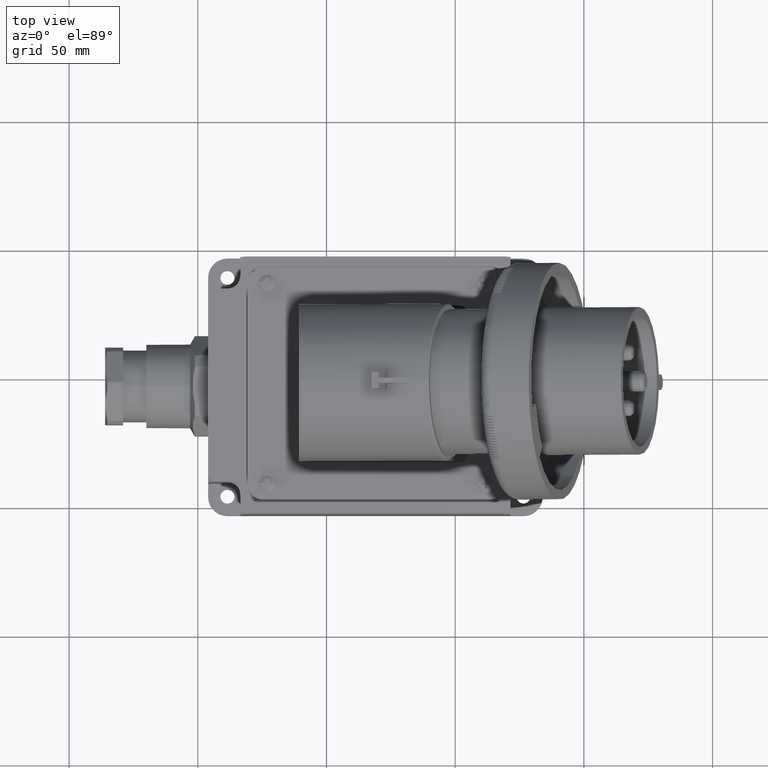
[diagram: clean part render]
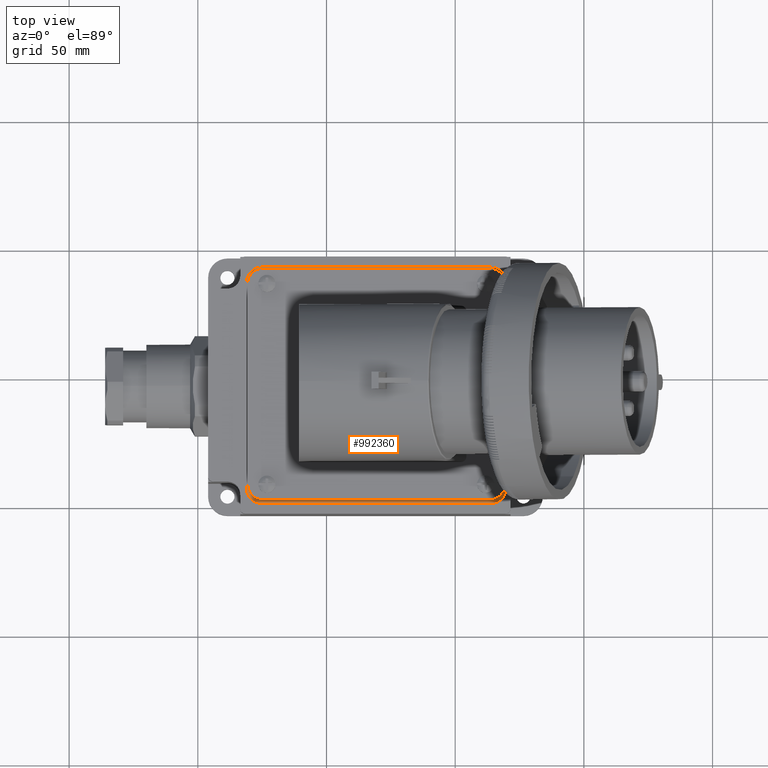
[diagram: same view with one face highlighted and labeled with its STEP entity id]
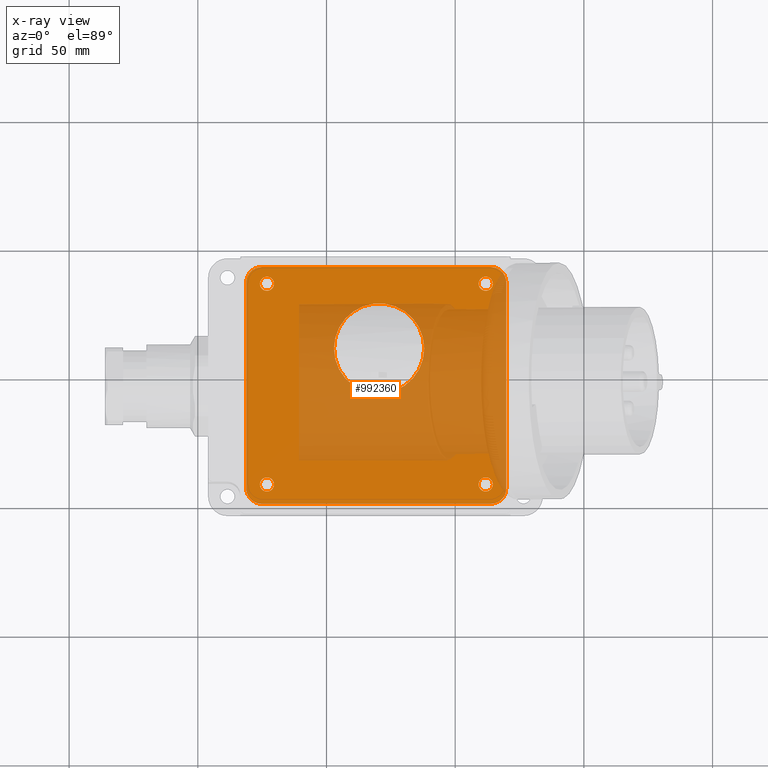
[diagram: x-ray of the same camera — body ghosted, the highlighted face saturated]
A machine part, top view. The second image highlights one B-rep face of the part: STEP entity #992360.
The next image is the same camera in x-ray: the body ghosted, the highlighted face saturated — about 49% of this face is hidden behind the body in this view.
In plain terms, the highlighted planar face has unit normal (0, 0, 1).
Its self-contained STEP definition (entity closure, byte-faithful):
#15560=CARTESIAN_POINT('',(24.1011064276177,86.5,45.3));
#15570=VERTEX_POINT('',#15560);
#15600=CARTESIAN_POINT('',(26.8511064276177,86.5,45.3));
#15610=DIRECTION('',(0.,0.,1.));
#15620=DIRECTION('',(-1.,-6.98784943854736E-17,0.));
#15630=AXIS2_PLACEMENT_3D('',#15600,#15610,#15620);
#15640=CIRCLE('',#15630,2.75);
#15650=CARTESIAN_POINT('',(29.6011064276177,86.5,45.3));
#15660=VERTEX_POINT('',#15650);
#15670=EDGE_CURVE('',#15660,#15570,#15640,.T.);
#15950=CARTESIAN_POINT('',(109.101106427618,86.5,45.3));
#15960=VERTEX_POINT('',#15950);
#15990=CARTESIAN_POINT('',(111.851106427618,86.5,45.3));
#16000=DIRECTION('',(0.,0.,1.));
#16010=DIRECTION('',(-1.,-6.98784943854736E-17,0.));
#16020=AXIS2_PLACEMENT_3D('',#15990,#16000,#16010);
#16030=CIRCLE('',#16020,2.75);
#16040=CARTESIAN_POINT('',(114.601106427618,86.5,45.3));
#16050=VERTEX_POINT('',#16040);
#16060=EDGE_CURVE('',#16050,#15960,#16030,.T.);
#16340=CARTESIAN_POINT('',(24.1011064276177,8.5,45.3));
#16350=VERTEX_POINT('',#16340);
#16380=CARTESIAN_POINT('',(26.8511064276177,8.5,45.3));
#16390=DIRECTION('',(0.,0.,1.));
#16400=DIRECTION('',(-1.,-6.98784943854736E-17,0.));
#16410=AXIS2_PLACEMENT_3D('',#16380,#16390,#16400);
#16420=CIRCLE('',#16410,2.75);
#16430=CARTESIAN_POINT('',(29.6011064276177,8.5,45.3));
#16440=VERTEX_POINT('',#16430);
#16450=EDGE_CURVE('',#16440,#16350,#16420,.T.);
#16830=CARTESIAN_POINT('',(24.8511064276178,1.,45.3));
#16840=VERTEX_POINT('',#16830);
#16870=CARTESIAN_POINT('',(119.851106427618,1.,45.3));
#16880=DIRECTION('',(-1.,0.,0.));
#16890=VECTOR('',#16880,1.);
#16900=LINE('',#16870,#16890);
#16910=CARTESIAN_POINT('',(113.851106427618,1.,45.3));
#16920=VERTEX_POINT('',#16910);
#16930=EDGE_CURVE('',#16920,#16840,#16900,.T.);
#33830=CARTESIAN_POINT('',(52.903972382818,61.3352417861547,45.3));
#33840=VERTEX_POINT('',#33830);
#34000=CARTESIAN_POINT('',(87.963972382818,61.3352417861547,45.3));
#34010=VERTEX_POINT('',#34000);
#34040=CARTESIAN_POINT('',(70.433972382818,61.3352417861547,45.3));
#34050=DIRECTION('',(8.32667268468867E-17,-2.4690564955787E-18,-1.));
#34060=DIRECTION('',(-1.,0.,-8.32667268468867E-17));
#34070=AXIS2_PLACEMENT_3D('',#34040,#34050,#34060);
#34080=CIRCLE('',#34070,17.53);
#34090=EDGE_CURVE('',#34010,#33840,#34080,.T.);
#929280=EDGE_CURVE('',#16350,#16440,#16420,.T.);
#930670=EDGE_CURVE('',#15960,#16050,#16030,.T.);
#935740=EDGE_CURVE('',#15570,#15660,#15640,.T.);
#937520=EDGE_CURVE('',#33840,#34010,#34080,.T.);
#991010=CARTESIAN_POINT('',(18.8511064276178,87.,45.3));
#991020=VERTEX_POINT('',#991010);
#991050=CARTESIAN_POINT('',(18.8511064276178,1.,45.3));
#991060=DIRECTION('',(0.,1.,0.));
#991070=VECTOR('',#991060,1.);
#991080=LINE('',#991050,#991070);
#991090=CARTESIAN_POINT('',(18.8511064276178,7.,45.3));
#991100=VERTEX_POINT('',#991090);
#991110=EDGE_CURVE('',#991100,#991020,#991080,.T.);
#991340=CARTESIAN_POINT('',(24.8511064276178,7.,45.3));
#991350=DIRECTION('',(0.,0.,1.));
#991360=DIRECTION('',(1.,0.,0.));
#991370=AXIS2_PLACEMENT_3D('',#991340,#991350,#991360);
#991380=CIRCLE('',#991370,6.);
#991390=EDGE_CURVE('',#991100,#16840,#991380,.T.);
#991540=CARTESIAN_POINT('',(69.,47.,45.3));
#991550=DIRECTION('',(0.,0.,1.));
#991560=DIRECTION('',(1.,0.,0.));
#991570=AXIS2_PLACEMENT_3D('',#991540,#991550,#991560);
#991580=PLANE('',#991570);
#991590=CARTESIAN_POINT('',(24.8511064276178,87.,45.3));
#991600=DIRECTION('',(0.,0.,-1.));
#991610=DIRECTION('',(-1.,0.,0.));
#991620=AXIS2_PLACEMENT_3D('',#991590,#991600,#991610);
#991630=CIRCLE('',#991620,6.);
#991640=CARTESIAN_POINT('',(24.8511064276178,93.,45.3));
#991650=VERTEX_POINT('',#991640);
#991660=EDGE_CURVE('',#991020,#991650,#991630,.T.);
#991670=ORIENTED_EDGE('',*,*,#991660,.F.);
#991680=CARTESIAN_POINT('',(18.8511064276178,93.,45.3));
#991690=DIRECTION('',(1.,0.,0.));
#991700=VECTOR('',#991690,1.);
#991710=LINE('',#991680,#991700);
#991720=CARTESIAN_POINT('',(113.851106427618,93.,45.3));
#991730=VERTEX_POINT('',#991720);
#991740=EDGE_CURVE('',#991650,#991730,#991710,.T.);
#991750=ORIENTED_EDGE('',*,*,#991740,.F.);
#991760=CARTESIAN_POINT('',(113.851106427618,87.,45.3));
#991770=DIRECTION('',(0.,0.,1.));
#991780=DIRECTION('',(1.,0.,0.));
#991790=AXIS2_PLACEMENT_3D('',#991760,#991770,#991780);
#991800=CIRCLE('',#991790,6.);
#991810=CARTESIAN_POINT('',(119.851106427618,87.,45.3));
#991820=VERTEX_POINT('',#991810);
#991830=EDGE_CURVE('',#991820,#991730,#991800,.T.);
#991840=ORIENTED_EDGE('',*,*,#991830,.T.);
#991850=CARTESIAN_POINT('',(119.851106427618,93.,45.3));
#991860=DIRECTION('',(0.,-1.,0.));
#991870=VECTOR('',#991860,1.);
#991880=LINE('',#991850,#991870);
#991890=CARTESIAN_POINT('',(119.851106427618,7.,45.3));
#991900=VERTEX_POINT('',#991890);
#991910=EDGE_CURVE('',#991820,#991900,#991880,.T.);
#991920=ORIENTED_EDGE('',*,*,#991910,.F.);
#991930=CARTESIAN_POINT('',(113.851106427618,7.,45.3));
#991940=DIRECTION('',(0.,0.,1.));
#991950=DIRECTION('',(1.,0.,0.));
#991960=AXIS2_PLACEMENT_3D('',#991930,#991940,#991950);
#991970=CIRCLE('',#991960,6.);
#991980=EDGE_CURVE('',#16920,#991900,#991970,.T.);
#991990=ORIENTED_EDGE('',*,*,#991980,.T.);
#992000=ORIENTED_EDGE('',*,*,#16930,.F.);
#992010=ORIENTED_EDGE('',*,*,#991390,.T.);
#992020=ORIENTED_EDGE('',*,*,#991110,.F.);
#992030=EDGE_LOOP('',(#992020,#992010,#992000,#991990,#991920,#991840,
#991750,#991670));
#992040=FACE_OUTER_BOUND('',#992030,.T.);
#992050=CARTESIAN_POINT('',(111.851106427618,8.5,45.3));
#992060=DIRECTION('',(0.,0.,1.));
#992070=DIRECTION('',(-1.,0.,0.));
#992080=AXIS2_PLACEMENT_3D('',#992050,#992060,#992070);
#992090=CIRCLE('',#992080,2.75);
#992100=CARTESIAN_POINT('',(109.101106427618,8.5,45.3));
#992110=VERTEX_POINT('',#992100);
#992120=CARTESIAN_POINT('',(114.601106427618,8.5,45.3));
#992130=VERTEX_POINT('',#992120);
#992140=EDGE_CURVE('',#992110,#992130,#992090,.T.);
#992150=ORIENTED_EDGE('',*,*,#992140,.F.);
#992160=EDGE_CURVE('',#992130,#992110,#992090,.T.);
#992170=ORIENTED_EDGE('',*,*,#992160,.F.);
#992180=EDGE_LOOP('',(#992170,#992150));
#992190=FACE_BOUND('',#992180,.T.);
#992200=ORIENTED_EDGE('',*,*,#935740,.F.);
#992210=ORIENTED_EDGE('',*,*,#15670,.F.);
#992220=EDGE_LOOP('',(#992210,#992200));
#992230=FACE_BOUND('',#992220,.T.);
#992240=ORIENTED_EDGE('',*,*,#930670,.F.);
#992250=ORIENTED_EDGE('',*,*,#16060,.F.);
#992260=EDGE_LOOP('',(#992250,#992240));
#992270=FACE_BOUND('',#992260,.T.);
#992280=ORIENTED_EDGE('',*,*,#929280,.F.);
#992290=ORIENTED_EDGE('',*,*,#16450,.F.);
#992300=EDGE_LOOP('',(#992290,#992280));
#992310=FACE_BOUND('',#992300,.T.);
#992320=ORIENTED_EDGE('',*,*,#937520,.T.);
#992330=ORIENTED_EDGE('',*,*,#34090,.T.);
#992340=EDGE_LOOP('',(#992330,#992320));
#992350=FACE_BOUND('',#992340,.T.);
#992360=ADVANCED_FACE('',(#992040,#992190,#992230,#992270,#992310,
#992350),#991580,.T.);